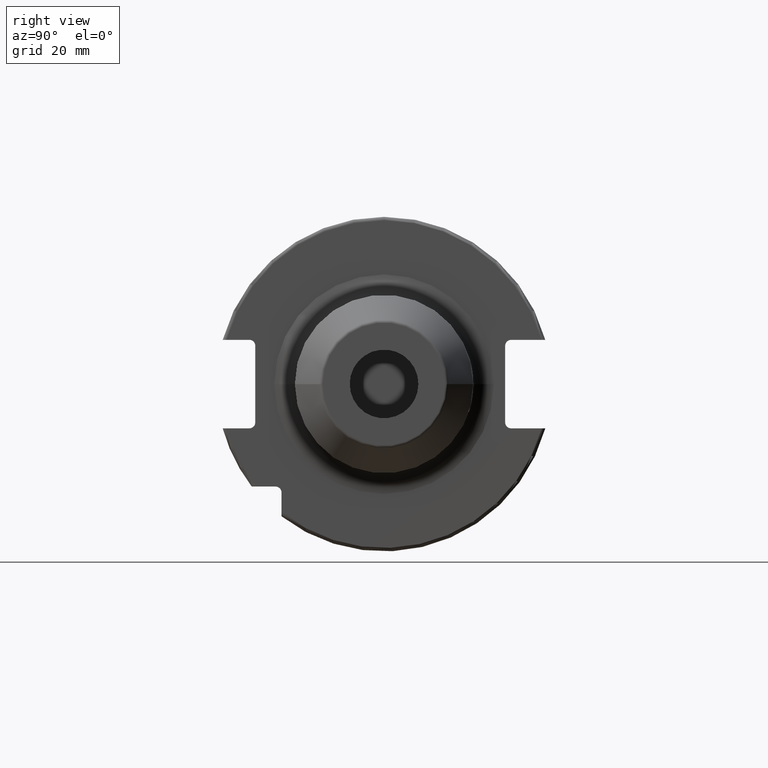
[diagram: clean part render]
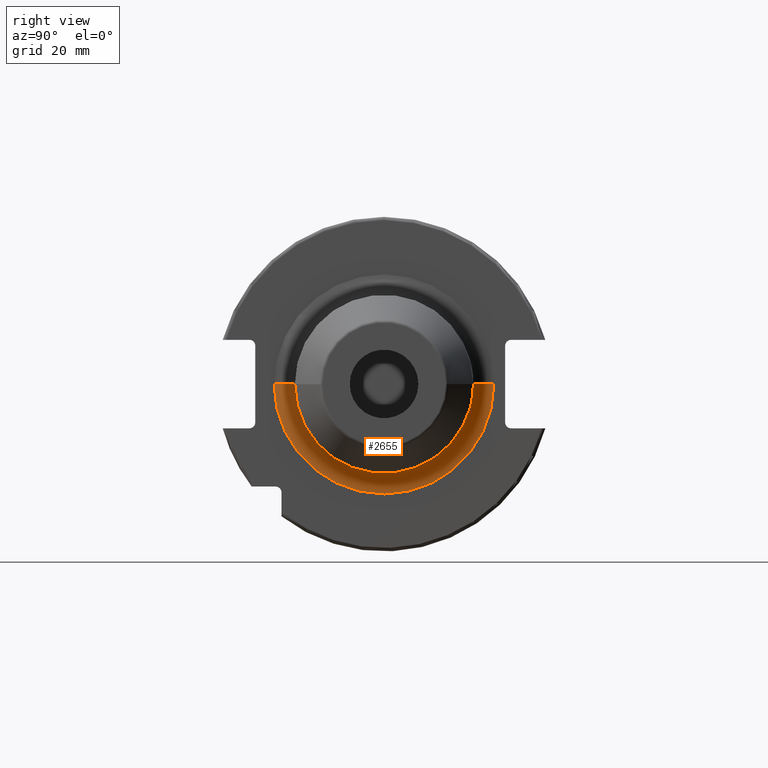
[diagram: same view with one face highlighted and labeled with its STEP entity id]
A machine part, right view. The second image highlights one B-rep face of the part: STEP entity #2655.
In plain terms, the highlighted toroidal blend (fillet) surface has major radius 32 mm and minor (blend) radius 6 mm.
Its self-contained STEP definition (entity closure, byte-faithful):
#172=CARTESIAN_POINT('',(1.905E1,0.E0,0.E0));
#173=DIRECTION('',(1.E0,0.E0,0.E0));
#174=DIRECTION('',(0.E0,-1.E0,0.E0));
#175=AXIS2_PLACEMENT_3D('',#172,#173,#174);
#952=CARTESIAN_POINT('',(2.505E1,-3.2E1,3.507472090547E-13));
#953=DIRECTION('',(0.E0,-1.096085028296E-14,-1.E0));
#954=DIRECTION('',(-1.E0,0.E0,0.E0));
#955=AXIS2_PLACEMENT_3D('',#952,#953,#954);
#957=CARTESIAN_POINT('',(2.505E1,3.2E1,-3.404498905013E-13));
#958=DIRECTION('',(0.E0,1.063905907817E-14,1.E0));
#959=DIRECTION('',(-1.E0,0.E0,0.E0));
#960=AXIS2_PLACEMENT_3D('',#957,#958,#959);
#1152=CARTESIAN_POINT('',(2.505E1,0.E0,0.E0));
#1153=DIRECTION('',(1.E0,0.E0,0.E0));
#1154=DIRECTION('',(0.E0,-1.E0,0.E0));
#1155=AXIS2_PLACEMENT_3D('',#1152,#1153,#1154);
#1625=CARTESIAN_POINT('',(1.905E1,-3.2E1,2.058396991586E-14));
#1626=CARTESIAN_POINT('',(1.905E1,3.2E1,-2.450283967313E-14));
#1627=VERTEX_POINT('',#1625);
#1628=VERTEX_POINT('',#1626);
#1629=CARTESIAN_POINT('',(2.505E1,-2.6E1,0.E0));
#1630=CARTESIAN_POINT('',(2.505E1,2.6E1,0.E0));
#1631=VERTEX_POINT('',#1629);
#1632=VERTEX_POINT('',#1630);
#2641=CARTESIAN_POINT('',(2.505E1,0.E0,0.E0));
#2642=DIRECTION('',(1.E0,0.E0,0.E0));
#2643=DIRECTION('',(0.E0,-9.999825114431E-1,5.914119369442E-3));
#2644=AXIS2_PLACEMENT_3D('',#2641,#2642,#2643);
#2645=TOROIDAL_SURFACE('',#2644,3.2E1,6.E0);
#2646=ORIENTED_EDGE('',*,*,#1888,.F.);
#2648=ORIENTED_EDGE('',*,*,#2647,.T.);
#2650=ORIENTED_EDGE('',*,*,#2649,.T.);
#2652=ORIENTED_EDGE('',*,*,#2651,.F.);
#2653=EDGE_LOOP('',(#2646,#2648,#2650,#2652));
#2654=FACE_OUTER_BOUND('',#2653,.F.);
#2655=ADVANCED_FACE('',(#2654),#2645,.F.);
#176=CIRCLE('',#175,3.2E1);
#956=CIRCLE('',#955,6.E0);
#961=CIRCLE('',#960,6.E0);
#1156=CIRCLE('',#1155,2.6E1);
#1888=EDGE_CURVE('',#1627,#1628,#176,.T.);
#2647=EDGE_CURVE('',#1627,#1631,#956,.T.);
#2649=EDGE_CURVE('',#1631,#1632,#1156,.T.);
#2651=EDGE_CURVE('',#1628,#1632,#961,.T.);